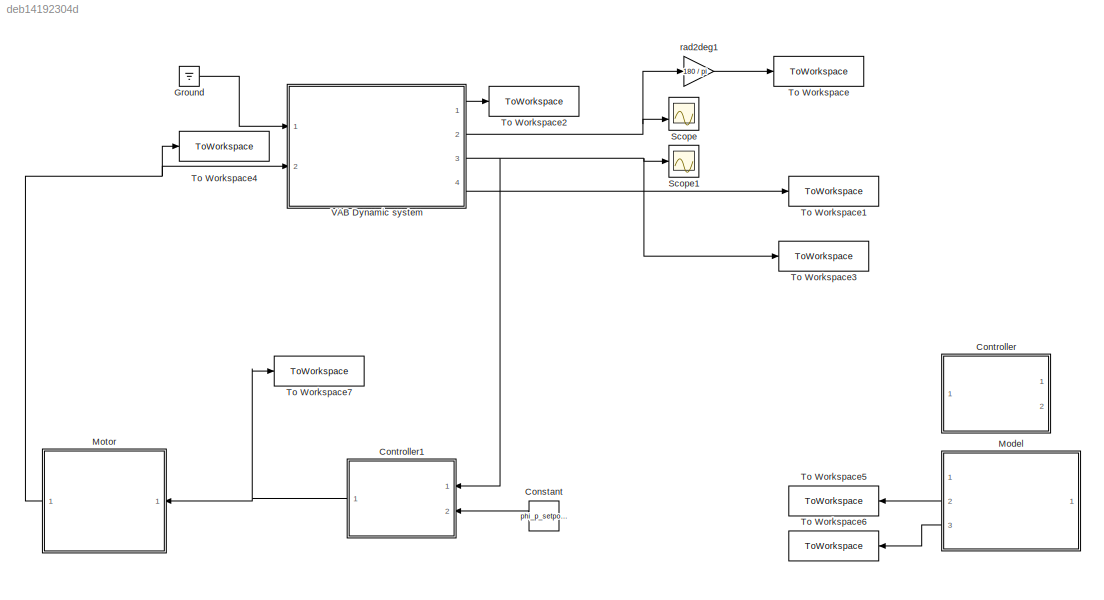
MODEL slx_deb14192304d
KIND model
CONFIG AbsTol = auto
CONFIG EnableMultiTasking = off
CONFIG FixedStep = Ts
CONFIG MaxStep = auto
CONFIG MinStep = auto
CONFIG RelTol = 1e-3
CONFIG SampleTimeConstraint = Unconstrained
CONFIG Solver = VariableStepAuto
CONFIG SolverName = VariableStepAuto
CONFIG StartTime = 0.0
CONFIG StopTime = t_end
BLOCK [Constant] Constant
  Value = phi_p_setpoint
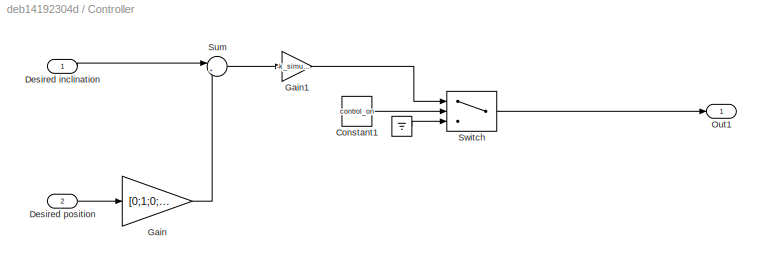
BLOCK [SubSystem] Controller
  Commented = on
  Ports = [2, 1]
  RequestExecContextInheritance = off
BLOCK [Ground] Controller/ 
BLOCK [Constant] Controller/Constant1
  Value = control_on
BLOCK [Inport] Controller/Desired inclination
  IconDisplay = Port number
BLOCK [Inport] Controller/Desired position 
  IconDisplay = Port number
  Port = 2
BLOCK [Gain] Controller/Gain
  Gain = [0;1;0;0]
  OutDataTypeStr = Inherit: Inherit via internal rule
  ParamDataTypeStr = Inherit: Inherit via internal rule
  SaturateOnIntegerOverflow = off
BLOCK [Gain] Controller/Gain1
  Gain = -k_simulazione_continua
  Multiplication = Matrix(K*u)
  OutDataTypeStr = Inherit: Inherit via internal rule
  ParamDataTypeStr = Inherit: Inherit via internal rule
  SaturateOnIntegerOverflow = off
BLOCK [Outport] Controller/Out1
  IconDisplay = Port number
BLOCK [Sum] Controller/Sum
  IconShape = round
  InputSameDT = off
  Inputs = |+-
  OutDataTypeStr = Inherit: Inherit via internal rule
  Ports = [2, 1]
  SaturateOnIntegerOverflow = off
BLOCK [Switch] Controller/Switch
  Criteria = u2 > Threshold
  InputSameDT = off
  SaturateOnIntegerOverflow = off
  Threshold = 0.5
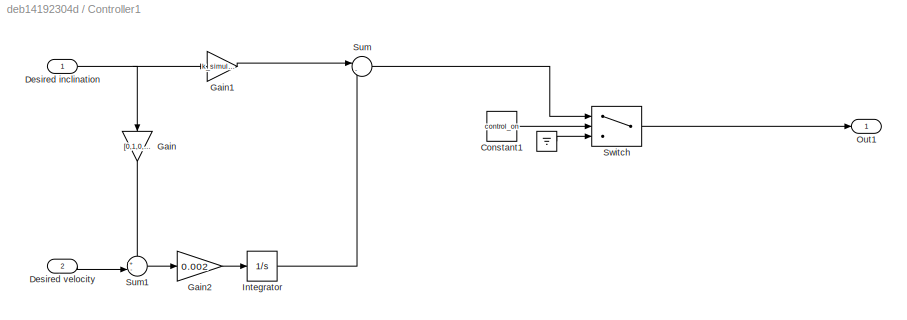
BLOCK [SubSystem] Controller1
  Ports = [2, 1]
  RequestExecContextInheritance = off
BLOCK [Ground] Controller1/ 
BLOCK [Constant] Controller1/Constant1
  Value = control_on
BLOCK [Inport] Controller1/Desired inclination
  IconDisplay = Port number
BLOCK [Inport] Controller1/Desired velocity 
  IconDisplay = Port number
  Port = 2
BLOCK [Gain] Controller1/Gain
  Gain = [0,1,0,0]
  Multiplication = Matrix(K*u)
  OutDataTypeStr = Inherit: Inherit via internal rule
  ParamDataTypeStr = Inherit: Inherit via internal rule
  SaturateOnIntegerOverflow = off
BLOCK [Gain] Controller1/Gain1
  Gain = k_simulazione_continua
  Multiplication = Matrix(K*u)
  OutDataTypeStr = Inherit: Inherit via internal rule
  ParamDataTypeStr = Inherit: Inherit via internal rule
  SaturateOnIntegerOverflow = off
BLOCK [Gain] Controller1/Gain2
  Commented = on
  Gain = 0.002
  OutDataTypeStr = Inherit: Inherit via internal rule
  ParamDataTypeStr = Inherit: Inherit via internal rule
  SaturateOnIntegerOverflow = off
BLOCK [Integrator] Controller1/Integrator
  Commented = on
  Ports = [1, 1]
BLOCK [Outport] Controller1/Out1
  IconDisplay = Port number
BLOCK [Sum] Controller1/Sum
  IconShape = round
  InputSameDT = off
  Inputs = |-+
  OutDataTypeStr = Inherit: Inherit via internal rule
  Ports = [2, 1]
  SaturateOnIntegerOverflow = off
BLOCK [Sum] Controller1/Sum1
  IconShape = round
  InputSameDT = off
  Inputs = +-|
  OutDataTypeStr = Inherit: Inherit via internal rule
  Ports = [2, 1]
  SaturateOnIntegerOverflow = off
BLOCK [Switch] Controller1/Switch
  Criteria = u2 > Threshold
  InputSameDT = off
  SaturateOnIntegerOverflow = off
  Threshold = 0.5
BLOCK [Ground] Ground
BLOCK [ModelReference] Model
  Commented = on
  ModelNameDialog = MotorModel.slx
  ModelReferenceVersion = 1.9
  Ports = [1, 3]
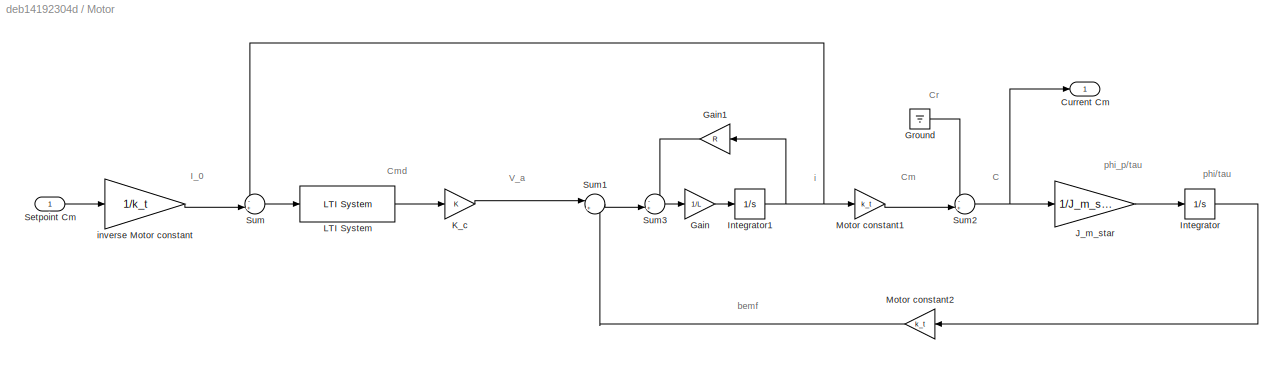
BLOCK [SubSystem] Motor 
  Ports = [1, 1]
  RequestExecContextInheritance = off
BLOCK [Outport] Motor /Current Cm 
  IconDisplay = Port number
BLOCK [Gain] Motor /Gain
  Gain = 1/L
  OutDataTypeStr = Inherit: Inherit via internal rule
  ParamDataTypeStr = Inherit: Inherit via internal rule
  SaturateOnIntegerOverflow = off
BLOCK [Gain] Motor /Gain1
  Gain = R
  OutDataTypeStr = Inherit: Inherit via internal rule
  ParamDataTypeStr = Inherit: Inherit via internal rule
  SaturateOnIntegerOverflow = off
BLOCK [Ground] Motor /Ground
BLOCK [Integrator] Motor /Integrator
  Ports = [1, 1]
BLOCK [Integrator] Motor /Integrator1
  Ports = [1, 1]
BLOCK [Gain] Motor /J_m_star 
  Gain = 1/J_m_star
  OutDataTypeStr = Inherit: Inherit via internal rule
  ParamDataTypeStr = Inherit: Inherit via internal rule
  SaturateOnIntegerOverflow = off
BLOCK [Gain] Motor /K_c
  OutDataTypeStr = Inherit: Inherit via internal rule
  ParamDataTypeStr = Inherit: Inherit via internal rule
  SaturateOnIntegerOverflow = off
BLOCK [Reference] Motor /LTI System  REF=cstblocks/LTI System
  Ports = [1, 1]
  SourceBlock = cstblocks/LTI System
  SourceProductBaseCode = CT
  SourceProductName = Control System Toolbox
  SourceType = LTI Block
BLOCK [Gain] Motor /Motor constant1
  Gain = k_t
  OutDataTypeStr = Inherit: Inherit via internal rule
  ParamDataTypeStr = Inherit: Inherit via internal rule
  SaturateOnIntegerOverflow = off
BLOCK [Gain] Motor /Motor constant2
  Gain = k_t
  OutDataTypeStr = Inherit: Inherit via internal rule
  ParamDataTypeStr = Inherit: Inherit via internal rule
  SaturateOnIntegerOverflow = off
BLOCK [Inport] Motor /Setpoint Cm
  IconDisplay = Port number
BLOCK [Sum] Motor /Sum
  IconShape = round
  InputSameDT = off
  Inputs = -+|
  OutDataTypeStr = Inherit: Inherit via internal rule
  Ports = [2, 1]
  SaturateOnIntegerOverflow = off
BLOCK [Sum] Motor /Sum1
  IconShape = round
  InputSameDT = off
  Inputs = |+-
  OutDataTypeStr = Inherit: Inherit via internal rule
  Ports = [2, 1]
  SaturateOnIntegerOverflow = off
BLOCK [Sum] Motor /Sum2
  IconShape = round
  InputSameDT = off
  Inputs = -+|
  OutDataTypeStr = Inherit: Inherit via internal rule
  Ports = [2, 1]
  SaturateOnIntegerOverflow = off
BLOCK [Sum] Motor /Sum3
  IconShape = round
  InputSameDT = off
  Inputs = -+|
  OutDataTypeStr = Inherit: Inherit via internal rule
  Ports = [2, 1]
  SaturateOnIntegerOverflow = off
BLOCK [Gain] Motor /inverse Motor constant
  Gain = 1/k_t
  OutDataTypeStr = Inherit: Inherit via internal rule
  ParamDataTypeStr = Inherit: Inherit via internal rule
  SaturateOnIntegerOverflow = off
BLOCK [Scope] Scope
  Commented = on
  Floating = off
  NumInputPorts = 2
  Ports = [2]
  ScopeSpecificationString = Simulink.scopes.TimeScopeBlockCfg('CurrentConfiguration', extmgr.ConfigurationSet(extmgr.Configuration('Core','General UI',true),extmgr.Configuration('Core','Source UI',true),extmgr.Configuration('Sources','WiredSimulink',true),extmgr.Configuration('Visuals','Time Domain',true,'SerializedDisplays',{struct('MinYLimReal','-44.73919','MaxYLimReal','361.30559','YLabelReal','','MinYLimMag','0.00000','M...<+1414ch>
BLOCK [Scope] Scope1
  Commented = on
  Floating = off
  NumInputPorts = 1
  Ports = [1]
  ScopeSpecificationString = Simulink.scopes.TimeScopeBlockCfg('CurrentConfiguration', extmgr.ConfigurationSet(extmgr.Configuration('Core','General UI',true),extmgr.Configuration('Core','Source UI',true),extmgr.Configuration('Sources','WiredSimulink',true,'DataLoggingVariableName','ScopeData1'),extmgr.Configuration('Visuals','Time Domain',true,'SerializedDisplays',{struct('MinYLimReal','-11.24621','MaxYLimReal','13.10501','YL...<+1489ch>
BLOCK [ToWorkspace] To Workspace
  FixptAsFi = on
  MaxDataPoints = inf
  Ports = [1]
  SampleTime = -1
  VariableName = theta_Clamped
BLOCK [ToWorkspace] To Workspace1
  FixptAsFi = on
  MaxDataPoints = inf
  Ports = [1]
  SampleTime = -1
  VariableName = phi_Clamped
BLOCK [ToWorkspace] To Workspace2
  FixptAsFi = on
  MaxDataPoints = inf
  Ports = [1]
  SampleTime = -1
  VariableName = Output
BLOCK [ToWorkspace] To Workspace3
  FixptAsFi = on
  MaxDataPoints = inf
  Ports = [1]
  SampleTime = -1
  VariableName = completeState
BLOCK [ToWorkspace] To Workspace4
  FixptAsFi = on
  MaxDataPoints = inf
  Ports = [1]
  SampleTime = -1
  VariableName = actualTorque
BLOCK [ToWorkspace] To Workspace5
  Commented = on
  FixptAsFi = on
  MaxDataPoints = inf
  Ports = [1]
  SampleTime = -1
  VariableName = actualCurrent
BLOCK [ToWorkspace] To Workspace6
  Commented = on
  FixptAsFi = on
  MaxDataPoints = inf
  Ports = [1]
  SampleTime = -1
  VariableName = actualSpeed
BLOCK [ToWorkspace] To Workspace7
  FixptAsFi = on
  MaxDataPoints = inf
  Ports = [1]
  SampleTime = -1
  VariableName = torqueRequested
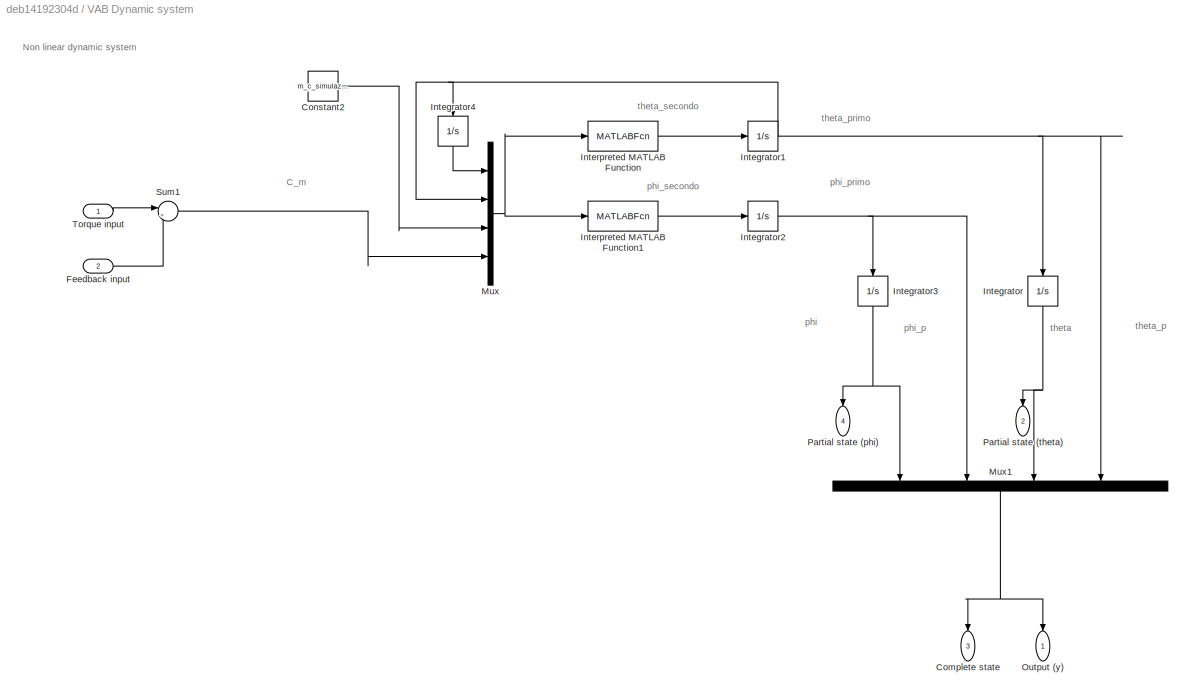
BLOCK [SubSystem] VAB Dynamic system
  Ports = [2, 4]
  RequestExecContextInheritance = off
BLOCK [Outport] VAB Dynamic system/Complete state 
  IconDisplay = Port number
  Port = 3
BLOCK [Constant] VAB Dynamic system/Constant2
  Value = m_c_simulazione
BLOCK [Inport] VAB Dynamic system/Feedback input
  IconDisplay = Port number
  Port = 2
BLOCK [Integrator] VAB Dynamic system/Integrator
  InitialCondition = theta_iniziale
  Ports = [1, 1]
BLOCK [Integrator] VAB Dynamic system/Integrator1
  InitialCondition = theta_p_iniziale
  LowerSaturationLimit = -100
  Ports = [1, 1]
  UpperSaturationLimit = 100
BLOCK [Integrator] VAB Dynamic system/Integrator2
  InitialCondition = phi_p_iniziale
  Ports = [1, 1]
BLOCK [Integrator] VAB Dynamic system/Integrator3
  InitialCondition = phi_iniziale
  Ports = [1, 1]
BLOCK [Integrator] VAB Dynamic system/Integrator4
  InitialCondition = theta_iniziale
  Ports = [1, 1]
BLOCK [MATLABFcn] VAB Dynamic system/Interpreted MATLAB Function
  MATLABFcn = theta_secondo(u(3),u(1),u(2),u(4))
  OutputDimensions = 1
  Ports = [1, 1]
BLOCK [MATLABFcn] VAB Dynamic system/Interpreted MATLAB Function1
  MATLABFcn = phi_secondo(u(3),u(1),u(2),u(4))
  Ports = [1, 1]
BLOCK [Mux] VAB Dynamic system/Mux
  DisplayOption = bar
  Ports = [4, 1]
BLOCK [Mux] VAB Dynamic system/Mux1
  DisplayOption = bar
  Ports = [4, 1]
BLOCK [Outport] VAB Dynamic system/Output (y)
  IconDisplay = Port number
BLOCK [Outport] VAB Dynamic system/Partial state (phi)
  IconDisplay = Port number
  Port = 4
BLOCK [Outport] VAB Dynamic system/Partial state (theta)
  IconDisplay = Port number
  Port = 2
BLOCK [Sum] VAB Dynamic system/Sum1
  IconShape = round
  InputSameDT = off
  Inputs = |++
  OutDataTypeStr = Inherit: Inherit via internal rule
  Ports = [2, 1]
  SaturateOnIntegerOverflow = off
BLOCK [Inport] VAB Dynamic system/Torque input
  IconDisplay = Port number
BLOCK [Gain] rad2deg1
  Gain = 180 / pi
  OutDataTypeStr = Inherit: Inherit via internal rule
  ParamDataTypeStr = Inherit: Inherit via internal rule
  SaturateOnIntegerOverflow = off
ANNOTATION Motor : C
ANNOTATION Motor : Cm
ANNOTATION Motor : Cmd
ANNOTATION Motor : Cr
ANNOTATION Motor : I_0
ANNOTATION Motor : V_a
ANNOTATION Motor : bemf
ANNOTATION Motor : i
ANNOTATION Motor : phi/tau
ANNOTATION Motor : phi_p/tau
ANNOTATION VAB Dynamic system: Non linear dynamic system
ANNOTATION VAB Dynamic system: C_m
ANNOTATION VAB Dynamic system: phi
ANNOTATION VAB Dynamic system: phi_p
ANNOTATION VAB Dynamic system: phi_primo
ANNOTATION VAB Dynamic system: phi_secondo
ANNOTATION VAB Dynamic system: theta
ANNOTATION VAB Dynamic system: theta_p
ANNOTATION VAB Dynamic system: theta_primo
ANNOTATION VAB Dynamic system: theta_secondo
LINE Constant:1 -> Controller1:2
LINE Controller/ :1 -> Controller/Switch:3
LINE Controller/Constant1:1 -> Controller/Switch:2
LINE Controller/Desired inclination:1 -> Controller/Sum:1
LINE Controller/Desired position :1 -> Controller/Gain:1
LINE Controller/Gain1:1 -> Controller/Switch:1
LINE Controller/Gain:1 -> Controller/Sum:2
LINE Controller/Sum:1 -> Controller/Gain1:1
LINE Controller/Switch:1 -> Controller/Out1:1
LINE Controller1/ :1 -> Controller1/Switch:3
LINE Controller1/Constant1:1 -> Controller1/Switch:2
NET Controller1/Desired inclination:1 -> Controller1/Gain1:1, Controller1/Gain:1
LINE Controller1/Desired velocity :1 -> Controller1/Sum1:2
LINE Controller1/Gain1:1 -> Controller1/Sum:1
LINE Controller1/Gain2:1 -> Controller1/Integrator:1
LINE Controller1/Gain:1 -> Controller1/Sum1:1
LINE Controller1/Integrator:1 -> Controller1/Sum:2
LINE Controller1/Sum1:1 -> Controller1/Gain2:1
LINE Controller1/Sum:1 -> Controller1/Switch:1
LINE Controller1/Switch:1 -> Controller1/Out1:1
NET Controller1:1 -> Motor :1, To Workspace7:1
LINE Ground:1 -> VAB Dynamic system:1
LINE Model:2 -> To Workspace5:1
LINE Model:3 -> To Workspace6:1
LINE Motor /Gain1:1 -> Motor /Sum3:1
LINE Motor /Gain:1 -> Motor /Integrator1:1
LINE Motor /Ground:1 -> Motor /Sum2:1
NET Motor /Integrator1:1 -> Motor /Gain1:1, Motor /Motor constant1:1, Motor /Sum:1
LINE Motor /Integrator:1 -> Motor /Motor constant2:1
LINE Motor /J_m_star :1 -> Motor /Integrator:1
LINE Motor /K_c:1 -> Motor /Sum1:1
LINE Motor /LTI System:1 -> Motor /K_c:1
LINE Motor /Motor constant1:1 -> Motor /Sum2:2
LINE Motor /Motor constant2:1 -> Motor /Sum1:2
LINE Motor /Setpoint Cm:1 -> Motor /inverse Motor constant:1
LINE Motor /Sum1:1 -> Motor /Sum3:2
NET Motor /Sum2:1 -> Motor /Current Cm :1, Motor /J_m_star :1
LINE Motor /Sum3:1 -> Motor /Gain:1
LINE Motor /Sum:1 -> Motor /LTI System:1
LINE Motor /inverse Motor constant:1 -> Motor /Sum:2
NET Motor :1 -> To Workspace4:1, VAB Dynamic system:2
LINE VAB Dynamic system/Constant2:1 -> VAB Dynamic system/Mux:3
LINE VAB Dynamic system/Feedback input:1 -> VAB Dynamic system/Sum1:2
NET VAB Dynamic system/Integrator1:1 -> VAB Dynamic system/Integrator4:1, VAB Dynamic system/Integrator:1, VAB Dynamic system/Mux1:4, VAB Dynamic system/Mux:2
NET VAB Dynamic system/Integrator2:1 -> VAB Dynamic system/Integrator3:1, VAB Dynamic system/Mux1:2
NET VAB Dynamic system/Integrator3:1 -> VAB Dynamic system/Mux1:1, VAB Dynamic system/Partial state (phi):1
LINE VAB Dynamic system/Integrator4:1 -> VAB Dynamic system/Mux:1
NET VAB Dynamic system/Integrator:1 -> VAB Dynamic system/Mux1:3, VAB Dynamic system/Partial state (theta):1
LINE VAB Dynamic system/Interpreted MATLAB Function1:1 -> VAB Dynamic system/Integrator2:1
LINE VAB Dynamic system/Interpreted MATLAB Function:1 -> VAB Dynamic system/Integrator1:1
NET VAB Dynamic system/Mux1:1 -> VAB Dynamic system/Complete state :1, VAB Dynamic system/Output (y):1
NET VAB Dynamic system/Mux:1 -> VAB Dynamic system/Interpreted MATLAB Function1:1, VAB Dynamic system/Interpreted MATLAB Function:1
LINE VAB Dynamic system/Sum1:1 -> VAB Dynamic system/Mux:4
LINE VAB Dynamic system/Torque input:1 -> VAB Dynamic system/Sum1:1
LINE VAB Dynamic system:1 -> To Workspace2:1
NET VAB Dynamic system:2 -> Scope:2, rad2deg1:1
NET VAB Dynamic system:3 -> Controller1:1, Scope1:1, To Workspace3:1
LINE VAB Dynamic system:4 -> To Workspace1:1
LINE rad2deg1:1 -> To Workspace:1
note: NET lines group one-source signal fan-out (src -> all destinations, sorted); 1:1 wires keep LINE
